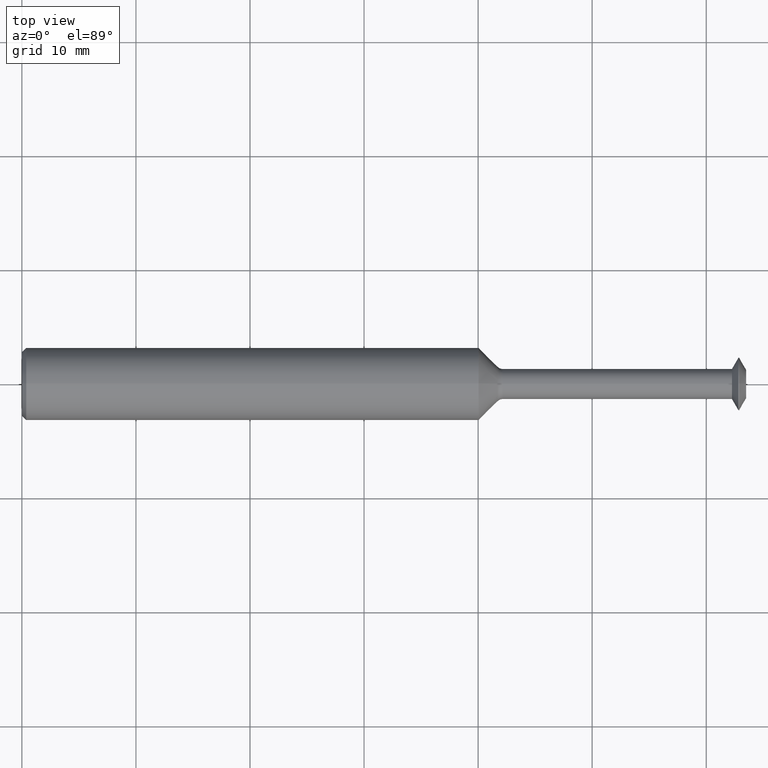
[diagram: clean part render]
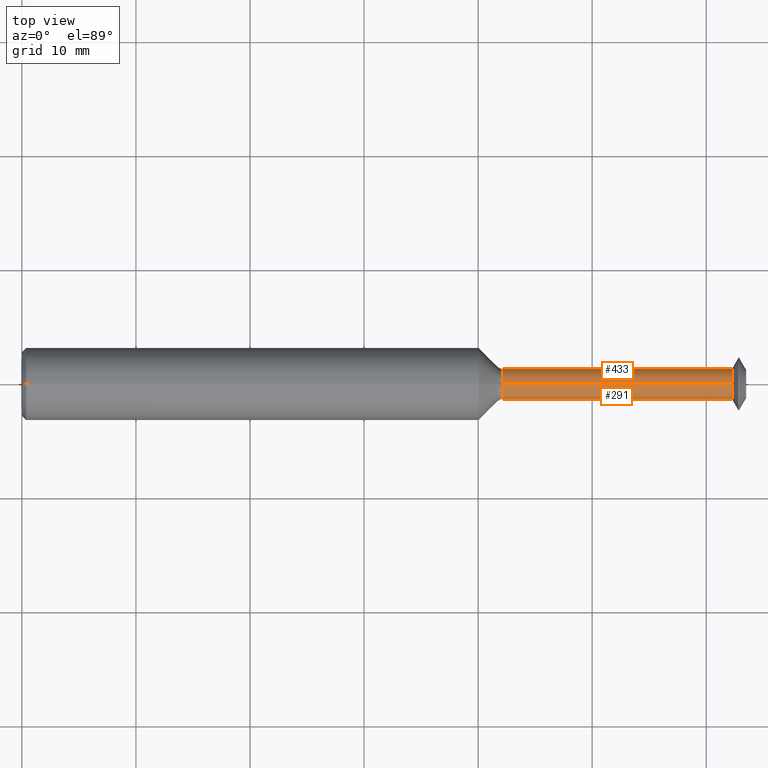
[diagram: same view with one multi-face feature highlighted, each face labeled with its STEP entity id]
A machine part, top view. The highlighted faces form ONE feature: a constant-radius fillet chain: 2 tangent blend faces with common blend radius 1.3208 mm. The faces share edges in the B-rep.
Their STEP definitions:
[1] entity #291 (Cylinder):
#11 = CARTESIAN_POINT ( 'NONE',  ( 1.660003014481508332, 6.368163355566256473E-18, -0.05200000000000015721 ) ) ;
#20 = DIRECTION ( 'NONE',  ( -1.000000000000000000, -0.0000000000000000000, -0.0000000000000000000 ) ) ;
#27 = CIRCLE ( 'NONE', #116, 0.05200000000000000455 ) ;
#41 = VERTEX_POINT ( 'NONE', #324 ) ;
#43 = CARTESIAN_POINT ( 'NONE',  ( 1.660003014481508332, 0.0000000000000000000, 0.0000000000000000000 ) ) ;
#62 = DIRECTION ( 'NONE',  ( 0.0000000000000000000, 0.0000000000000000000, 1.000000000000000000 ) ) ;
#65 = VERTEX_POINT ( 'NONE', #490 ) ;
#70 = VECTOR ( 'NONE', #266, 39.37007874015748143 ) ;
#72 = VECTOR ( 'NONE', #118, 39.37007874015748143 ) ;
#85 = CARTESIAN_POINT ( 'NONE',  ( 0.0000000000000000000, 0.0000000000000000000, 0.0000000000000000000 ) ) ;
#94 = CARTESIAN_POINT ( 'NONE',  ( 2.451016945457063834, 0.0000000000000000000, 0.0000000000000000000 ) ) ;
#99 = DIRECTION ( 'NONE',  ( -1.000000000000000000, -0.0000000000000000000, -0.0000000000000000000 ) ) ;
#100 = LINE ( 'NONE', #229, #72 ) ;
#104 = DIRECTION ( 'NONE',  ( 0.0000000000000000000, 0.0000000000000000000, 1.000000000000000000 ) ) ;
#105 = CIRCLE ( 'NONE', #155, 0.05200000000000015721 ) ;
#108 = LINE ( 'NONE', #269, #70 ) ;
#116 = AXIS2_PLACEMENT_3D ( 'NONE', #94, #99, #104 ) ;
#118 = DIRECTION ( 'NONE',  ( -1.000000000000000000, -0.0000000000000000000, -0.0000000000000000000 ) ) ;
#136 = EDGE_CURVE ( 'NONE', #232, #65, #105, .T. ) ;
#155 = AXIS2_PLACEMENT_3D ( 'NONE', #43, #20, #230 ) ;
#202 = EDGE_LOOP ( 'NONE', ( #376, #223, #500, #378 ) ) ;
#223 = ORIENTED_EDGE ( 'NONE', *, *, #411, .T. ) ;
#229 = CARTESIAN_POINT ( 'NONE',  ( 0.0000000000000000000, 6.368163355566246458E-18, -0.05200000000000008088 ) ) ;
#230 = DIRECTION ( 'NONE',  ( 0.0000000000000000000, 0.0000000000000000000, 1.000000000000000000 ) ) ;
#232 = VERTEX_POINT ( 'NONE', #11 ) ;
#241 = AXIS2_PLACEMENT_3D ( 'NONE', #85, #374, #62 ) ;
#266 = DIRECTION ( 'NONE',  ( -1.000000000000000000, -0.0000000000000000000, -0.0000000000000000000 ) ) ;
#269 = CARTESIAN_POINT ( 'NONE',  ( 0.0000000000000000000, 0.0000000000000000000, 0.05200000000000008088 ) ) ;
#291 = ADVANCED_FACE ( 'NONE', ( #459 ), #413, .T. ) ;
#324 = CARTESIAN_POINT ( 'NONE',  ( 2.451016945457063834, 0.0000000000000000000, -0.05200000000000000455 ) ) ;
#347 = CARTESIAN_POINT ( 'NONE',  ( 2.451016945457063834, 8.756224613903546798E-18, 0.05200000000000000455 ) ) ;
#374 = DIRECTION ( 'NONE',  ( -1.000000000000000000, -0.0000000000000000000, -0.0000000000000000000 ) ) ;
#376 = ORIENTED_EDGE ( 'NONE', *, *, #460, .F. ) ;
#378 = ORIENTED_EDGE ( 'NONE', *, *, #136, .F. ) ;
#411 = EDGE_CURVE ( 'NONE', #41, #493, #27, .T. ) ;
#413 = CYLINDRICAL_SURFACE ( 'NONE', #241, 0.05200000000000008088 ) ;
#459 = FACE_OUTER_BOUND ( 'NONE', #202, .T. ) ;
#460 = EDGE_CURVE ( 'NONE', #41, #232, #100, .T. ) ;
#468 = EDGE_CURVE ( 'NONE', #493, #65, #108, .T. ) ;
#490 = CARTESIAN_POINT ( 'NONE',  ( 1.660003014481508332, 0.0000000000000000000, 0.05200000000000015721 ) ) ;
#493 = VERTEX_POINT ( 'NONE', #347 ) ;
#500 = ORIENTED_EDGE ( 'NONE', *, *, #468, .T. ) ;
[2] entity #433 (Cylinder):
#6 = DIRECTION ( 'NONE',  ( -1.000000000000000000, -0.0000000000000000000, -0.0000000000000000000 ) ) ;
#11 = CARTESIAN_POINT ( 'NONE',  ( 1.660003014481508332, 6.368163355566256473E-18, -0.05200000000000015721 ) ) ;
#12 = ORIENTED_EDGE ( 'NONE', *, *, #367, .T. ) ;
#15 = CIRCLE ( 'NONE', #349, 0.05200000000000015721 ) ;
#31 = DIRECTION ( 'NONE',  ( 0.0000000000000000000, 0.0000000000000000000, 1.000000000000000000 ) ) ;
#41 = VERTEX_POINT ( 'NONE', #324 ) ;
#65 = VERTEX_POINT ( 'NONE', #490 ) ;
#70 = VECTOR ( 'NONE', #266, 39.37007874015748143 ) ;
#72 = VECTOR ( 'NONE', #118, 39.37007874015748143 ) ;
#87 = DIRECTION ( 'NONE',  ( -1.000000000000000000, -0.0000000000000000000, -0.0000000000000000000 ) ) ;
#100 = LINE ( 'NONE', #229, #72 ) ;
#102 = AXIS2_PLACEMENT_3D ( 'NONE', #109, #87, #139 ) ;
#108 = LINE ( 'NONE', #269, #70 ) ;
#109 = CARTESIAN_POINT ( 'NONE',  ( 0.0000000000000000000, 0.0000000000000000000, 0.0000000000000000000 ) ) ;
#115 = DIRECTION ( 'NONE',  ( 0.0000000000000000000, 0.0000000000000000000, 1.000000000000000000 ) ) ;
#118 = DIRECTION ( 'NONE',  ( -1.000000000000000000, -0.0000000000000000000, -0.0000000000000000000 ) ) ;
#129 = ORIENTED_EDGE ( 'NONE', *, *, #343, .F. ) ;
#139 = DIRECTION ( 'NONE',  ( 0.0000000000000000000, 0.0000000000000000000, 1.000000000000000000 ) ) ;
#161 = ORIENTED_EDGE ( 'NONE', *, *, #468, .F. ) ;
#166 = CIRCLE ( 'NONE', #187, 0.05200000000000000455 ) ;
#187 = AXIS2_PLACEMENT_3D ( 'NONE', #212, #6, #31 ) ;
#212 = CARTESIAN_POINT ( 'NONE',  ( 2.451016945457063834, 0.0000000000000000000, 0.0000000000000000000 ) ) ;
#229 = CARTESIAN_POINT ( 'NONE',  ( 0.0000000000000000000, 6.368163355566246458E-18, -0.05200000000000008088 ) ) ;
#232 = VERTEX_POINT ( 'NONE', #11 ) ;
#234 = ORIENTED_EDGE ( 'NONE', *, *, #460, .T. ) ;
#266 = DIRECTION ( 'NONE',  ( -1.000000000000000000, -0.0000000000000000000, -0.0000000000000000000 ) ) ;
#269 = CARTESIAN_POINT ( 'NONE',  ( 0.0000000000000000000, 0.0000000000000000000, 0.05200000000000008088 ) ) ;
#324 = CARTESIAN_POINT ( 'NONE',  ( 2.451016945457063834, 0.0000000000000000000, -0.05200000000000000455 ) ) ;
#335 = DIRECTION ( 'NONE',  ( -1.000000000000000000, -0.0000000000000000000, -0.0000000000000000000 ) ) ;
#343 = EDGE_CURVE ( 'NONE', #65, #232, #15, .T. ) ;
#347 = CARTESIAN_POINT ( 'NONE',  ( 2.451016945457063834, 8.756224613903546798E-18, 0.05200000000000000455 ) ) ;
#349 = AXIS2_PLACEMENT_3D ( 'NONE', #444, #335, #115 ) ;
#367 = EDGE_CURVE ( 'NONE', #493, #41, #166, .T. ) ;
#382 = EDGE_LOOP ( 'NONE', ( #12, #234, #129, #161 ) ) ;
#433 = ADVANCED_FACE ( 'NONE', ( #436 ), #480, .T. ) ;
#436 = FACE_OUTER_BOUND ( 'NONE', #382, .T. ) ;
#444 = CARTESIAN_POINT ( 'NONE',  ( 1.660003014481508332, 0.0000000000000000000, 0.0000000000000000000 ) ) ;
#460 = EDGE_CURVE ( 'NONE', #41, #232, #100, .T. ) ;
#468 = EDGE_CURVE ( 'NONE', #493, #65, #108, .T. ) ;
#480 = CYLINDRICAL_SURFACE ( 'NONE', #102, 0.05200000000000008088 ) ;
#490 = CARTESIAN_POINT ( 'NONE',  ( 1.660003014481508332, 0.0000000000000000000, 0.05200000000000015721 ) ) ;
#493 = VERTEX_POINT ( 'NONE', #347 ) ;